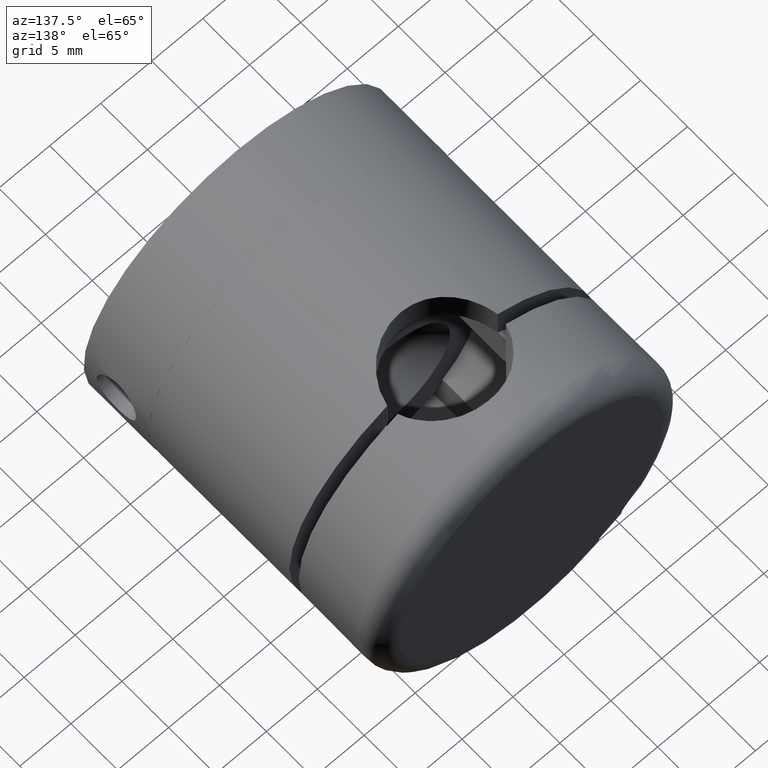
[diagram: clean part render]
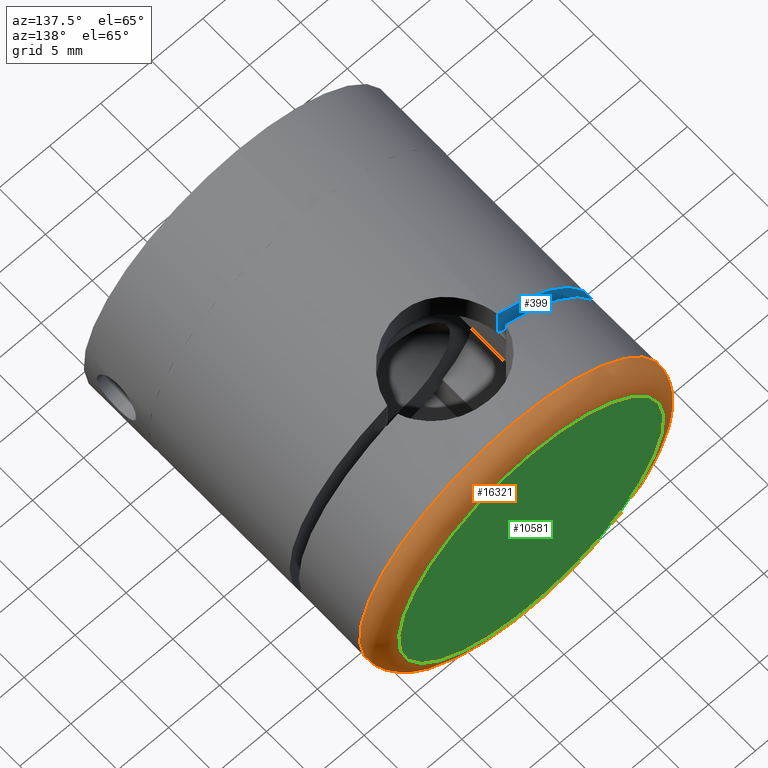
[diagram: same view with three faces highlighted in distinct colors, each labeled with its STEP entity id]
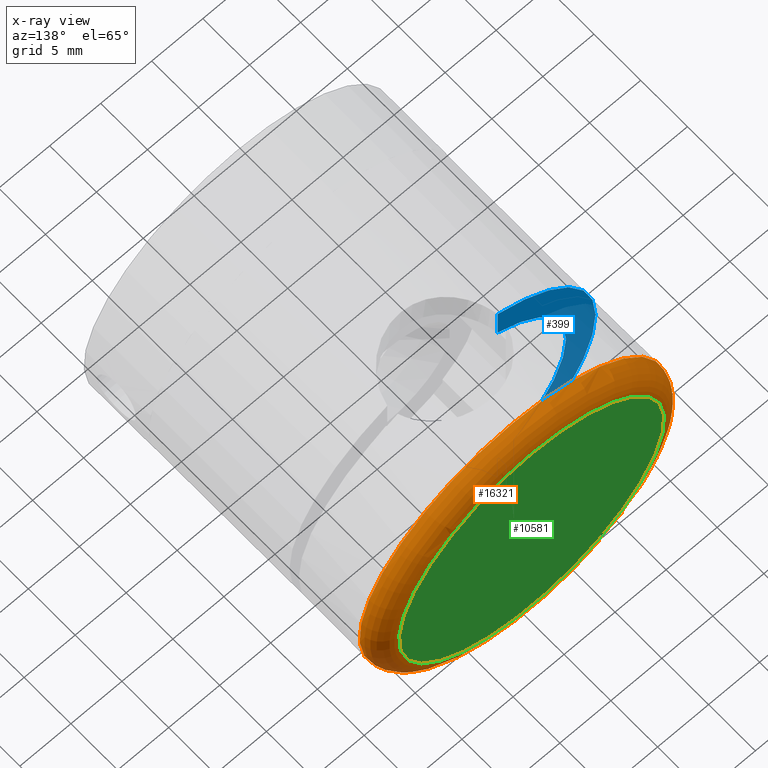
[diagram: x-ray of the same camera — body ghosted, the three highlighted faces saturated]
A machine part, auxiliary view with three faces highlighted in distinct colors.
The next image is the same camera in x-ray (body ghosted, the three faces saturated) — at least one of them is partly hidden behind the body in this view.
Their STEP definitions:

[orange] entity #16321 — the highlighted toroidal blend (fillet) surface has major radius 13 mm and minor (blend) radius 2 mm.
#586 = CARTESIAN_POINT ( 'NONE',  ( 0.0000000000000000000, 3.499999999999999600, 0.0000000000000000000 ) ) ;
#833 = TOROIDAL_SURFACE ( 'NONE', #1550, 13.00000000000000000, 2.000000000000000000 ) ;
#1550 = AXIS2_PLACEMENT_3D ( 'NONE', #12615, #5965, #5784 ) ;
#1748 = CIRCLE ( 'NONE', #6617, 13.00000000000000000 ) ;
#2854 = EDGE_LOOP ( 'NONE', ( #16005 ) ) ;
#3722 = EDGE_LOOP ( 'NONE', ( #7559 ) ) ;
#3910 = DIRECTION ( 'NONE',  ( 0.0000000000000000000, -1.000000000000000000, 0.0000000000000000000 ) ) ;
#4166 = FACE_OUTER_BOUND ( 'NONE', #3722, .T. ) ;
#5784 = DIRECTION ( 'NONE',  ( 0.0000000000000000000, 0.0000000000000000000, -1.000000000000000000 ) ) ;
#5965 = DIRECTION ( 'NONE',  ( 0.0000000000000000000, -1.000000000000000000, 0.0000000000000000000 ) ) ;
#6617 = AXIS2_PLACEMENT_3D ( 'NONE', #7835, #3910, #15923 ) ;
#6663 = VERTEX_POINT ( 'NONE', #14384 ) ;
#6723 = EDGE_CURVE ( 'NONE', #12656, #12656, #1748, .T. ) ;
#7387 = DIRECTION ( 'NONE',  ( -0.0000000000000000000, 1.000000000000000000, -0.0000000000000000000 ) ) ;
#7559 = ORIENTED_EDGE ( 'NONE', *, *, #6723, .F. ) ;
#7608 = CARTESIAN_POINT ( 'NONE',  ( 0.0000000000000000000, 1.500000000000000000, -13.00000000000000000 ) ) ;
#7835 = CARTESIAN_POINT ( 'NONE',  ( 0.0000000000000000000, 1.500000000000000000, 0.0000000000000000000 ) ) ;
#11247 = FACE_OUTER_BOUND ( 'NONE', #2854, .T. ) ;
#11276 = DIRECTION ( 'NONE',  ( 0.0000000000000000000, 0.0000000000000000000, -1.000000000000000000 ) ) ;
#12509 = AXIS2_PLACEMENT_3D ( 'NONE', #586, #7387, #11276 ) ;
#12615 = CARTESIAN_POINT ( 'NONE',  ( 0.0000000000000000000, 3.499999999999999600, 0.0000000000000000000 ) ) ;
#12656 = VERTEX_POINT ( 'NONE', #7608 ) ;
#12765 = CIRCLE ( 'NONE', #12509, 15.00000000000000000 ) ;
#13297 = EDGE_CURVE ( 'NONE', #6663, #6663, #12765, .T. ) ;
#14384 = CARTESIAN_POINT ( 'NONE',  ( 0.0000000000000000000, 3.499999999999999600, -15.00000000000000000 ) ) ;
#15923 = DIRECTION ( 'NONE',  ( 0.0000000000000000000, 0.0000000000000000000, -1.000000000000000000 ) ) ;
#16005 = ORIENTED_EDGE ( 'NONE', *, *, #13297, .F. ) ;
#16321 = ADVANCED_FACE ( 'NONE', ( #11247, #4166 ), #833, .T. ) ;

[blue] entity #399 — the highlighted planar face has unit normal (0, -1, 0).
#399 = ADVANCED_FACE ( 'NONE', ( #3563 ), #4994, .F. ) ;
#453 = AXIS2_PLACEMENT_3D ( 'NONE', #13360, #14689, #6872 ) ;
#1648 = DIRECTION ( 'NONE',  ( 0.0000000000000000000, 0.0000000000000000000, 1.000000000000000000 ) ) ;
#1860 = EDGE_CURVE ( 'NONE', #12497, #3508, #9570, .T. ) ;
#2078 = VECTOR ( 'NONE', #8966, 1000.000000000000000 ) ;
#2744 = LINE ( 'NONE', #16301, #5435 ) ;
#2875 = CARTESIAN_POINT ( 'NONE',  ( 0.0000000000000000000, 0.0000000000000000000, 0.0000000000000000000 ) ) ;
#3171 = EDGE_LOOP ( 'NONE', ( #17232, #4130, #16221, #6431 ) ) ;
#3508 = VERTEX_POINT ( 'NONE', #3531 ) ;
#3531 = CARTESIAN_POINT ( 'NONE',  ( 5.408326913195983500, 0.0000000000000000000, -10.82404730218784600 ) ) ;
#3563 = FACE_OUTER_BOUND ( 'NONE', #3171, .T. ) ;
#4117 = CARTESIAN_POINT ( 'NONE',  ( 5.408326913195983500, 0.0000000000000000000, 13.99106857963322200 ) ) ;
#4130 = ORIENTED_EDGE ( 'NONE', *, *, #8514, .T. ) ;
#4199 = DIRECTION ( 'NONE',  ( 0.0000000000000000000, 1.000000000000000000, 0.0000000000000000000 ) ) ;
#4663 = AXIS2_PLACEMENT_3D ( 'NONE', #2875, #4199, #1648 ) ;
#4994 = PLANE ( 'NONE',  #453 ) ;
#5435 = VECTOR ( 'NONE', #8309, 1000.000000000000000 ) ;
#6431 = ORIENTED_EDGE ( 'NONE', *, *, #16963, .T. ) ;
#6612 = CARTESIAN_POINT ( 'NONE',  ( 5.408326913195983500, 0.0000000000000000000, 10.82404730218784600 ) ) ;
#6872 = DIRECTION ( 'NONE',  ( 0.0000000000000000000, -0.0000000000000000000, 1.000000000000000000 ) ) ;
#7445 = CARTESIAN_POINT ( 'NONE',  ( 5.408326913195983500, 0.0000000000000000000, -13.99106857963322200 ) ) ;
#7702 = LINE ( 'NONE', #9941, #2078 ) ;
#8309 = DIRECTION ( 'NONE',  ( 0.0000000000000000000, 0.0000000000000000000, -1.000000000000000000 ) ) ;
#8514 = EDGE_CURVE ( 'NONE', #15849, #12497, #2744, .T. ) ;
#8966 = DIRECTION ( 'NONE',  ( 0.0000000000000000000, 0.0000000000000000000, -1.000000000000000000 ) ) ;
#9570 = CIRCLE ( 'NONE', #10786, 12.10000000000000000 ) ;
#9941 = CARTESIAN_POINT ( 'NONE',  ( 5.408326913195983500, 0.0000000000000000000, -15.00000000000000000 ) ) ;
#10786 = AXIS2_PLACEMENT_3D ( 'NONE', #12735, #14065, #11758 ) ;
#11758 = DIRECTION ( 'NONE',  ( 0.0000000000000000000, 0.0000000000000000000, 1.000000000000000000 ) ) ;
#12497 = VERTEX_POINT ( 'NONE', #6612 ) ;
#12735 = CARTESIAN_POINT ( 'NONE',  ( 0.0000000000000000000, 0.0000000000000000000, 0.0000000000000000000 ) ) ;
#13360 = CARTESIAN_POINT ( 'NONE',  ( 0.0000000000000000000, 0.0000000000000000000, 0.0000000000000000000 ) ) ;
#13706 = VERTEX_POINT ( 'NONE', #7445 ) ;
#14065 = DIRECTION ( 'NONE',  ( 0.0000000000000000000, 1.000000000000000000, 0.0000000000000000000 ) ) ;
#14689 = DIRECTION ( 'NONE',  ( 0.0000000000000000000, 1.000000000000000000, 0.0000000000000000000 ) ) ;
#15065 = EDGE_CURVE ( 'NONE', #15849, #13706, #15402, .T. ) ;
#15402 = CIRCLE ( 'NONE', #4663, 15.00000000000000000 ) ;
#15849 = VERTEX_POINT ( 'NONE', #4117 ) ;
#16221 = ORIENTED_EDGE ( 'NONE', *, *, #1860, .T. ) ;
#16301 = CARTESIAN_POINT ( 'NONE',  ( 5.408326913195983500, 0.0000000000000000000, -15.00000000000000000 ) ) ;
#16963 = EDGE_CURVE ( 'NONE', #3508, #13706, #7702, .T. ) ;
#17232 = ORIENTED_EDGE ( 'NONE', *, *, #15065, .F. ) ;

[green] entity #10581 — the highlighted planar face has unit normal (0, 1, 0).
#1748 = CIRCLE ( 'NONE', #6617, 13.00000000000000000 ) ;
#3002 = DIRECTION ( 'NONE',  ( 0.0000000000000000000, -1.000000000000000000, 0.0000000000000000000 ) ) ;
#3412 = FACE_OUTER_BOUND ( 'NONE', #14332, .T. ) ;
#3910 = DIRECTION ( 'NONE',  ( 0.0000000000000000000, -1.000000000000000000, 0.0000000000000000000 ) ) ;
#5053 = AXIS2_PLACEMENT_3D ( 'NONE', #11005, #3002, #8349 ) ;
#6617 = AXIS2_PLACEMENT_3D ( 'NONE', #7835, #3910, #15923 ) ;
#6723 = EDGE_CURVE ( 'NONE', #12656, #12656, #1748, .T. ) ;
#7608 = CARTESIAN_POINT ( 'NONE',  ( 0.0000000000000000000, 1.500000000000000000, -13.00000000000000000 ) ) ;
#7835 = CARTESIAN_POINT ( 'NONE',  ( 0.0000000000000000000, 1.500000000000000000, 0.0000000000000000000 ) ) ;
#7951 = ORIENTED_EDGE ( 'NONE', *, *, #6723, .T. ) ;
#8349 = DIRECTION ( 'NONE',  ( 0.0000000000000000000, -0.0000000000000000000, -1.000000000000000000 ) ) ;
#10581 = ADVANCED_FACE ( 'NONE', ( #3412 ), #12101, .T. ) ;
#11005 = CARTESIAN_POINT ( 'NONE',  ( 0.0000000000000000000, 1.500000000000000000, 0.0000000000000000000 ) ) ;
#12101 = PLANE ( 'NONE',  #5053 ) ;
#12656 = VERTEX_POINT ( 'NONE', #7608 ) ;
#14332 = EDGE_LOOP ( 'NONE', ( #7951 ) ) ;
#15923 = DIRECTION ( 'NONE',  ( 0.0000000000000000000, 0.0000000000000000000, -1.000000000000000000 ) ) ;